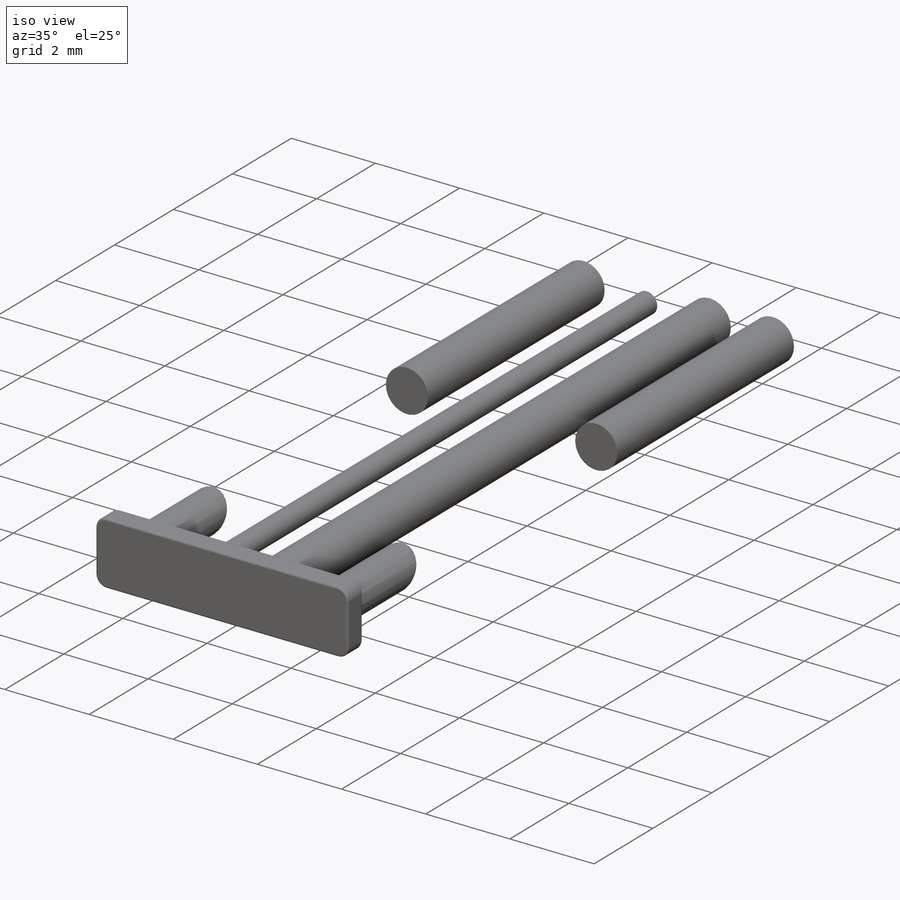
[diagram: iso view]
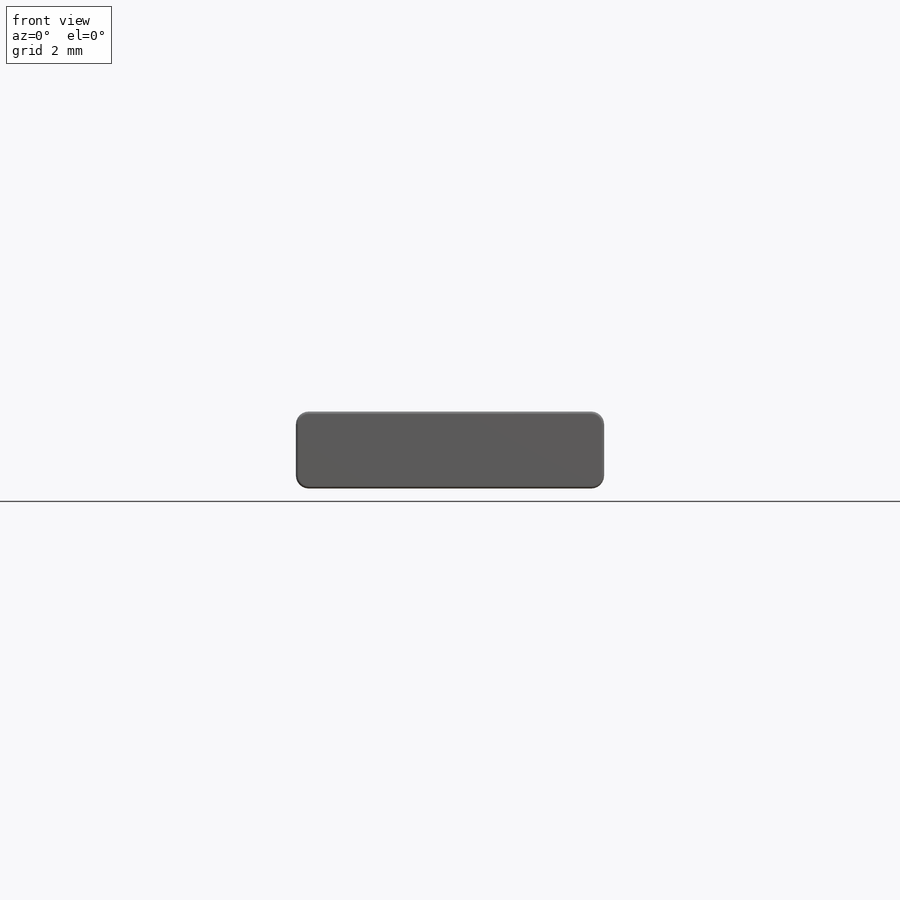
[diagram: front view]
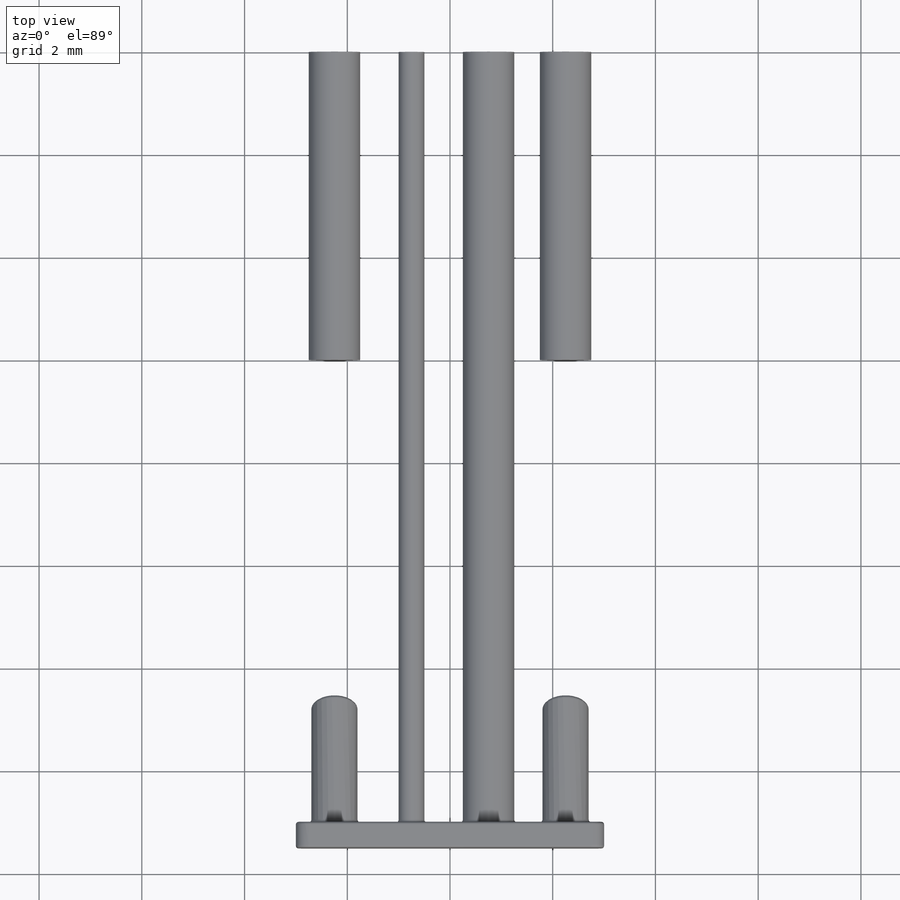
[diagram: top view]
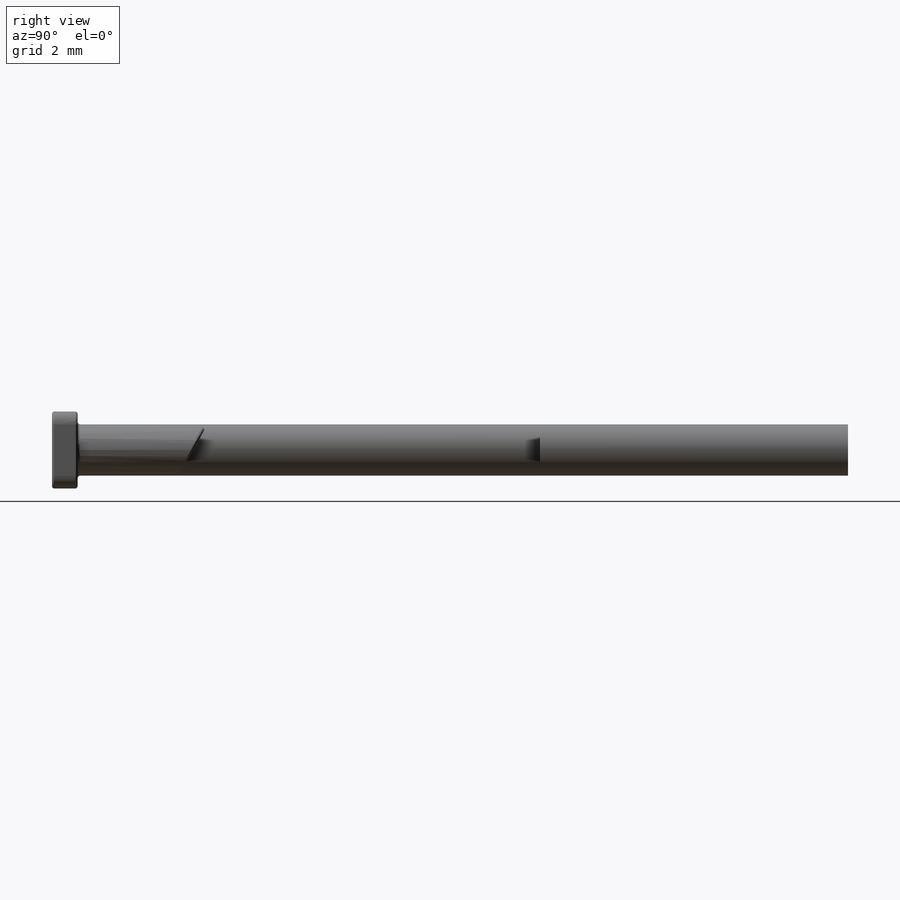
[diagram: right view]
SOLIDWORKS PART (.sldprt)
format: sldprt  version: not decoded by parser v0  size: 378,368 bytes
history: native  units: mm
features: sketch x7, cut_extrude x4, extrude x3, fillet x2, material x1 (+11 scaffold rows collapsed)
feature tree (28):
  scaffold x11  (default folders/planes/origin — collapsed)
  material  "Material <not specified>"
  sketch  "Sketch1"  dims[c1.D1=1.0mm c1.D2=0.5mm c1.D3=1.0mm c1.D4=1.0mm c1.D6=1.0mm c2.D3=0.75mm c2.D5=0.75mm c2.D7=1.5mm c2.D8=1.5mm]
  extrude  "Boss-Extrude1"  Depth=15mm
  sketch  "Sketch2"  dims[D1=0.5mm]
  cut_extrude  "Cut-Extrude1"  Depth=12mm
  sketch  "Sketch3"
  cut_extrude  "Cut-Extrude2"  Depth=9mm
  sketch  "Sketch4"  dims[D1=0.75mm D2=0.75mm D3=3.0mm D4=3.0mm]
  extrude  "Boss-Extrude2"  Depth=0.5mm
  sketch  "Sketch5"  dims[c1.D4=~0.831379mm c1.D5=0.9mm c1.D6=0.9mm c1.D1=1.5mm c1.D2=1.5mm c1.D3=~1.505511mm c2.D2=0.75mm c2.D3=0.75mm c2.D4=1.5mm c3.D2=0.75mm]
  extrude  "Boss-Extrude3"  Depth=2.5mm
  sketch  "Sketch6"  dims[D1=0.5mm]
  cut_extrude  "Cut-Extrude3"  Depth=2.5mm
  sketch  "Sketch7"  dims[D1=0.5mm]
  cut_extrude  "Cut-Extrude5"  Depth=2.5mm
  fillet  "Fillet1"  Radius=0.25mm
  fillet  "Fillet2"  Radius=0.05mm
decode coverage: 15 of 16 modeling features carry decoded parameters
note: ~ marks probable driven/reference dimensions
note: suppression state not decoded; provenance and decode notes live in map.json
